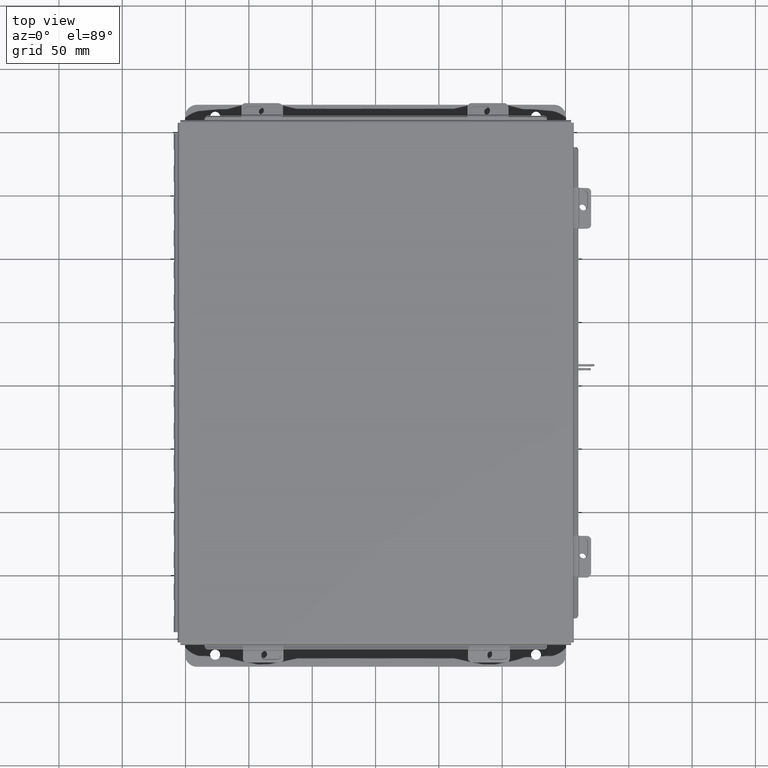
[diagram: clean part render]
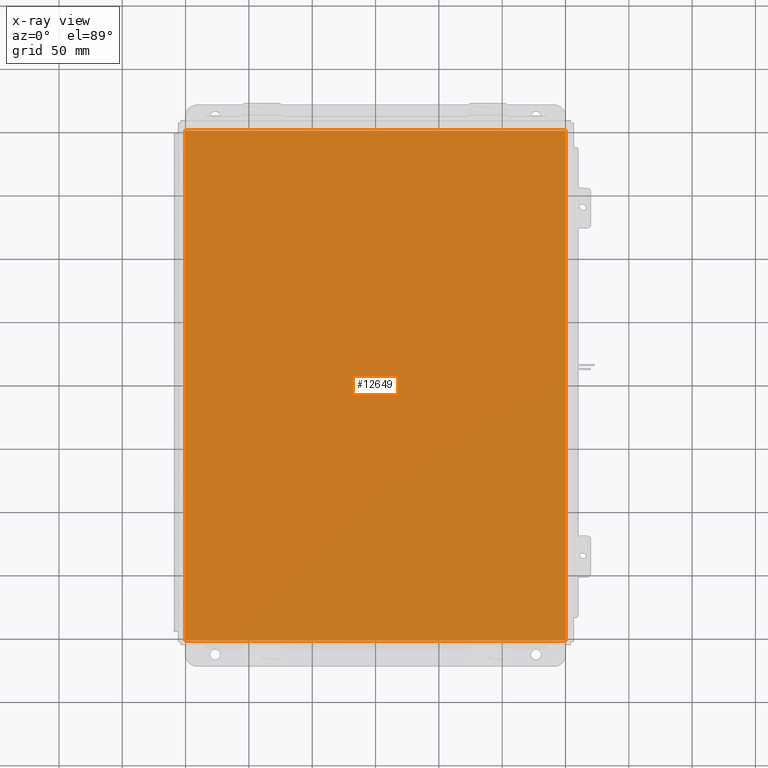
[diagram: x-ray — body ghosted, one internal face saturated and labeled with its STEP entity id]
A machine part, top view, then the same camera in x-ray: the body is ghosted and one INTERNAL B-rep face — a face not visible from any outside direction — is saturated and labeled: STEP entity #12649.
In plain terms, the highlighted planar face has unit normal (0, 0, -1).
Its self-contained STEP definition (entity closure, byte-faithful):
#50 = EDGE_CURVE ( 'NONE', #3355, #4251, #10436, .T. ) ;
#706 = DIRECTION ( 'NONE',  ( -1.000000000000000000, 0.0000000000000000000, -0.0000000000000000000 ) ) ;
#1556 = EDGE_LOOP ( 'NONE', ( #2136, #18091, #5662, #9219 ) ) ;
#1573 = VECTOR ( 'NONE', #5510, 39.37007874015748100 ) ;
#2054 = CARTESIAN_POINT ( 'NONE',  ( -5.912300000000000100, -7.925300000000000900, 4.268512490100411300E-017 ) ) ;
#2136 = ORIENTED_EDGE ( 'NONE', *, *, #8374, .F. ) ;
#2192 = VECTOR ( 'NONE', #11998, 39.37007874015748100 ) ;
#2404 = CARTESIAN_POINT ( 'NONE',  ( -6.000000000000000900, -7.925300000000000000, 0.0000000000000000000 ) ) ;
#3355 = VERTEX_POINT ( 'NONE', #5559 ) ;
#3619 = DIRECTION ( 'NONE',  ( -0.0000000000000000000, -1.000000000000000000, -0.0000000000000000000 ) ) ;
#4116 = EDGE_CURVE ( 'NONE', #17012, #4251, #11265, .T. ) ;
#4251 = VERTEX_POINT ( 'NONE', #14416 ) ;
#5273 = PLANE ( 'NONE',  #15060 ) ;
#5314 = FACE_OUTER_BOUND ( 'NONE', #1556, .T. ) ;
#5510 = DIRECTION ( 'NONE',  ( 1.000000000000000000, 0.0000000000000000000, 0.0000000000000000000 ) ) ;
#5559 = CARTESIAN_POINT ( 'NONE',  ( 5.912300000000000100, 7.925299999999997300, 4.268512490100411300E-017 ) ) ;
#5662 = ORIENTED_EDGE ( 'NONE', *, *, #4116, .F. ) ;
#6737 = CARTESIAN_POINT ( 'NONE',  ( 5.912300000000000100, 7.925300000000000000, 4.268512490100411300E-017 ) ) ;
#8374 = EDGE_CURVE ( 'NONE', #3355, #15520, #18846, .T. ) ;
#8544 = CARTESIAN_POINT ( 'NONE',  ( -6.000000000000000900, 7.925299999999998200, 0.0000000000000000000 ) ) ;
#9219 = ORIENTED_EDGE ( 'NONE', *, *, #17592, .T. ) ;
#9648 = CARTESIAN_POINT ( 'NONE',  ( 5.912300000000000100, -7.925300000000000000, 4.268512490100411300E-017 ) ) ;
#9776 = DIRECTION ( 'NONE',  ( -0.0000000000000000000, 1.000000000000000000, -0.0000000000000000000 ) ) ;
#9885 = CARTESIAN_POINT ( 'NONE',  ( 0.0000000000000000000, 0.0000000000000000000, 0.0000000000000000000 ) ) ;
#9951 = DIRECTION ( 'NONE',  ( 0.0000000000000000000, 0.0000000000000000000, -1.000000000000000000 ) ) ;
#10436 = LINE ( 'NONE', #8544, #2192 ) ;
#11020 = VECTOR ( 'NONE', #3619, 39.37007874015748100 ) ;
#11265 = LINE ( 'NONE', #2054, #19105 ) ;
#11770 = CARTESIAN_POINT ( 'NONE',  ( -5.912300000000000100, -7.925300000000000000, 4.268512490100411300E-017 ) ) ;
#11998 = DIRECTION ( 'NONE',  ( -1.000000000000000000, -0.0000000000000000000, -0.0000000000000000000 ) ) ;
#12649 = ADVANCED_FACE ( 'NONE', ( #5314 ), #5273, .F. ) ;
#13943 = LINE ( 'NONE', #2404, #1573 ) ;
#14416 = CARTESIAN_POINT ( 'NONE',  ( -5.912300000000000100, 7.925299999999998200, 4.268512490100411300E-017 ) ) ;
#15060 = AXIS2_PLACEMENT_3D ( 'NONE', #9885, #9951, #706 ) ;
#15520 = VERTEX_POINT ( 'NONE', #9648 ) ;
#17012 = VERTEX_POINT ( 'NONE', #11770 ) ;
#17592 = EDGE_CURVE ( 'NONE', #17012, #15520, #13943, .T. ) ;
#18091 = ORIENTED_EDGE ( 'NONE', *, *, #50, .T. ) ;
#18846 = LINE ( 'NONE', #6737, #11020 ) ;
#19105 = VECTOR ( 'NONE', #9776, 39.37007874015748100 ) ;